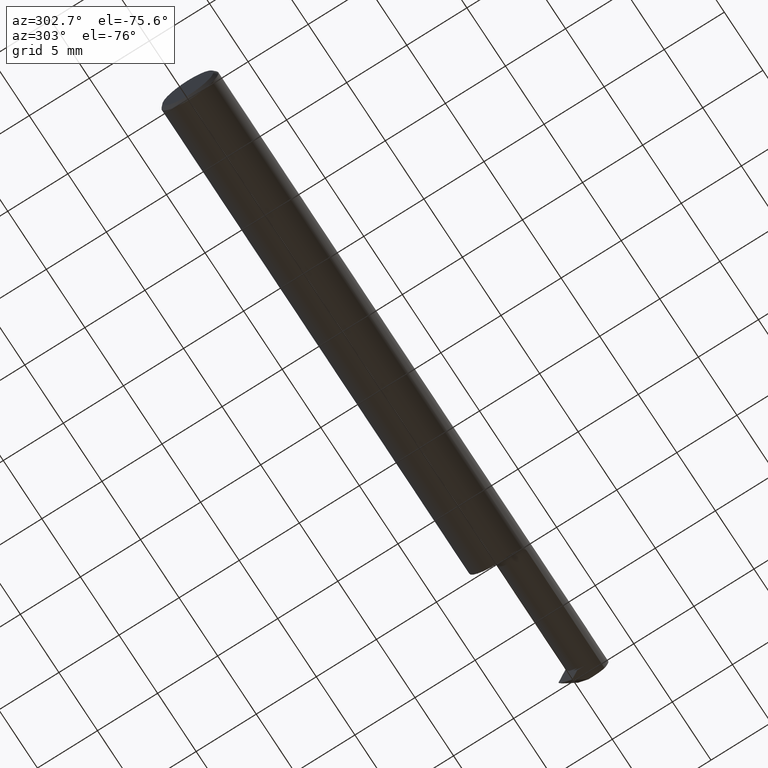
[diagram: clean part render]
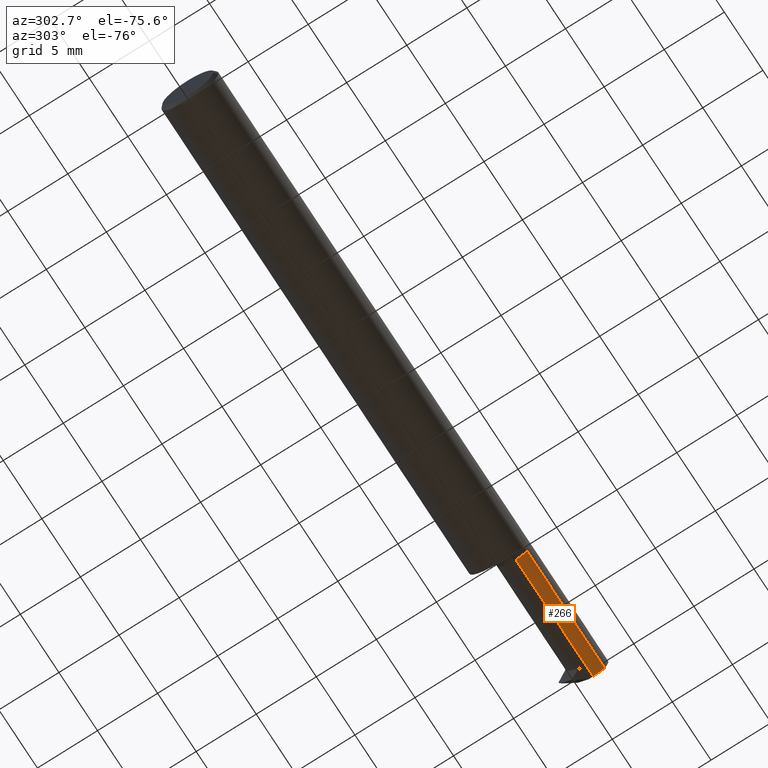
[diagram: same view with one face highlighted and labeled with its STEP entity id]
A machine part, auxiliary view. The second image highlights one B-rep face of the part: STEP entity #266.
In plain terms, the highlighted cylindrical surface (edge-blend (fillet) strip) has radius 1.524 mm, axis along (-1, -0, -0).
Its self-contained STEP definition (entity closure, byte-faithful):
#92 = CARTESIAN_POINT ( 'NONE',  ( 1.580000000000000071, -0.04360000000000009701, 0.000000000000000000 ) ) ;
#93 = ORIENTED_EDGE ( 'NONE', *, *, #103, .T. ) ;
#103 = EDGE_CURVE ( 'NONE', #833, #274, #832, .T. ) ;
#112 = EDGE_CURVE ( 'NONE', #320, #486, #629, .T. ) ;
#132 = ORIENTED_EDGE ( 'NONE', *, *, #249, .F. ) ;
#215 = AXIS2_PLACEMENT_3D ( 'NONE', #710, #281, #837 ) ;
#223 = EDGE_LOOP ( 'NONE', ( #132, #570, #225, #93, #422 ) ) ;
#225 = ORIENTED_EDGE ( 'NONE', *, *, #483, .F. ) ;
#230 = DIRECTION ( 'NONE',  ( -1.000000000000000000, -0.000000000000000000, -0.000000000000000000 ) ) ;
#237 = CIRCLE ( 'NONE', #359, 0.06000000000000009492 ) ;
#247 = VERTEX_POINT ( 'NONE', #703 ) ;
#249 = EDGE_CURVE ( 'NONE', #486, #247, #772, .T. ) ;
#260 = DIRECTION ( 'NONE',  ( 0.000000000000000000, 1.707404996040161800E-15, 1.000000000000000000 ) ) ;
#266 = ADVANCED_FACE ( 'NONE', ( #438 ), #293, .T. ) ;
#274 = VERTEX_POINT ( 'NONE', #656 ) ;
#281 = DIRECTION ( 'NONE',  ( -1.000000000000000000, -0.000000000000000000, -0.000000000000000000 ) ) ;
#286 = DIRECTION ( 'NONE',  ( -1.000000000000000000, -0.000000000000000000, -0.000000000000000000 ) ) ;
#293 = CYLINDRICAL_SURFACE ( 'NONE', #841, 0.06000000000000010880 ) ;
#320 = VERTEX_POINT ( 'NONE', #382 ) ;
#346 = DIRECTION ( 'NONE',  ( 1.000000000000000000, 0.000000000000000000, 0.000000000000000000 ) ) ;
#348 = CARTESIAN_POINT ( 'NONE',  ( 1.778530344885397296, -0.08098532110091721803, -0.04692907165266892860 ) ) ;
#359 = AXIS2_PLACEMENT_3D ( 'NONE', #882, #346, #260 ) ;
#382 = CARTESIAN_POINT ( 'NONE',  ( 2.000000000000000000, -0.04360000000000009701, -0.06000000000000009492 ) ) ;
#422 = ORIENTED_EDGE ( 'NONE', *, *, #753, .F. ) ;
#438 = FACE_OUTER_BOUND ( 'NONE', #223, .T. ) ;
#483 = EDGE_CURVE ( 'NONE', #833, #320, #237, .T. ) ;
#486 = VERTEX_POINT ( 'NONE', #835 ) ;
#495 = CARTESIAN_POINT ( 'NONE',  ( 1.580000000000000071, -0.04360000000000009007, -0.06000000000000010880 ) ) ;
#570 = ORIENTED_EDGE ( 'NONE', *, *, #112, .F. ) ;
#617 = CARTESIAN_POINT ( 'NONE',  ( 2.152060689770794344, -0.04360000000000009701, -0.06000000000000009492 ) ) ;
#629 = LINE ( 'NONE', #617, #850 ) ;
#642 = VECTOR ( 'NONE', #230, 39.37007874015748143 ) ;
#656 = CARTESIAN_POINT ( 'NONE',  ( 1.604999999999999982, -0.08098532110091725966, -0.04692907165266892167 ) ) ;
#700 = DIRECTION ( 'NONE',  ( -1.000000000000000000, -0.000000000000000000, -0.000000000000000000 ) ) ;
#703 = CARTESIAN_POINT ( 'NONE',  ( 1.604999999999999982, -0.04360000000000009007, -0.06000000000000012962 ) ) ;
#710 = CARTESIAN_POINT ( 'NONE',  ( 1.604999999999999982, -0.04360000000000009701, 0.000000000000000000 ) ) ;
#719 = DIRECTION ( 'NONE',  ( 0.000000000000000000, 0.000000000000000000, 1.000000000000000000 ) ) ;
#731 = CARTESIAN_POINT ( 'NONE',  ( 2.000000000000000000, -0.08098532110091713476, -0.04692907165266897024 ) ) ;
#753 = EDGE_CURVE ( 'NONE', #247, #274, #842, .T. ) ;
#772 = LINE ( 'NONE', #495, #642 ) ;
#780 = VECTOR ( 'NONE', #700, 39.37007874015748143 ) ;
#832 = LINE ( 'NONE', #348, #780 ) ;
#833 = VERTEX_POINT ( 'NONE', #731 ) ;
#835 = CARTESIAN_POINT ( 'NONE',  ( 1.962007406423369460, -0.04360000000000009701, -0.06000000000000010186 ) ) ;
#837 = DIRECTION ( 'NONE',  ( 0.000000000000000000, 0.000000000000000000, 1.000000000000000000 ) ) ;
#841 = AXIS2_PLACEMENT_3D ( 'NONE', #92, #286, #719 ) ;
#842 = CIRCLE ( 'NONE', #215, 0.06000000000000012268 ) ;
#850 = VECTOR ( 'NONE', #889, 39.37007874015748143 ) ;
#882 = CARTESIAN_POINT ( 'NONE',  ( 2.000000000000000000, -0.04360000000000009701, 0.000000000000000000 ) ) ;
#889 = DIRECTION ( 'NONE',  ( -1.000000000000000000, -0.000000000000000000, -0.000000000000000000 ) ) ;